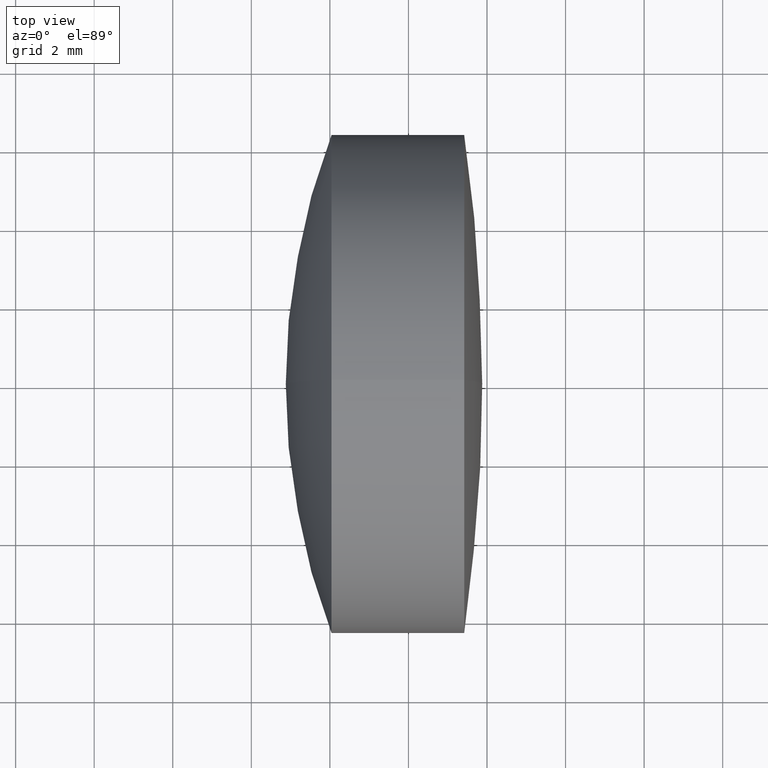
[diagram: clean part render]
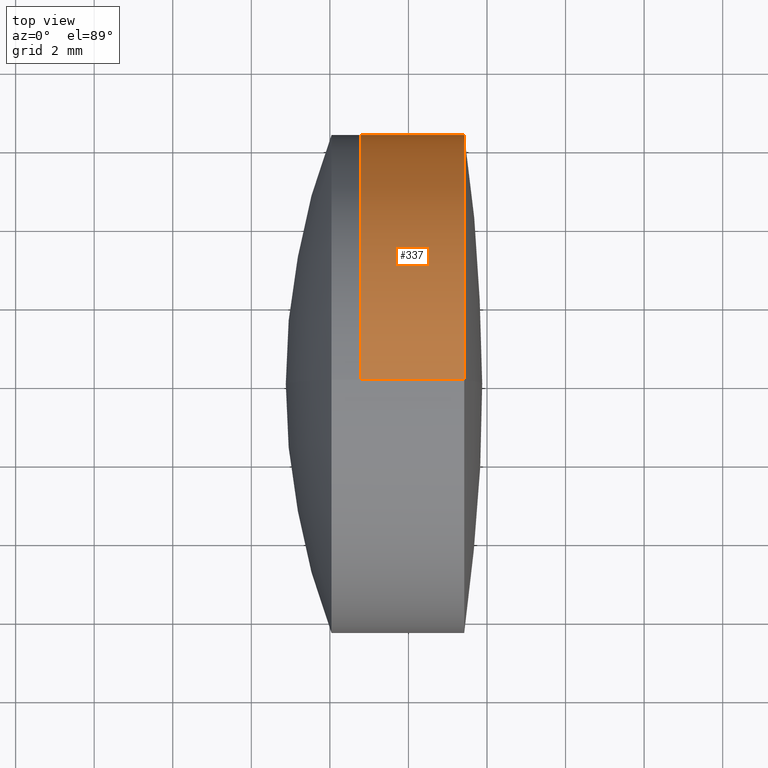
[diagram: same view with one face highlighted and labeled with its STEP entity id]
A machine part, top view. The second image highlights one B-rep face of the part: STEP entity #337.
In plain terms, the highlighted cylindrical surface (partial cylindrical patch) has radius 6.35 mm, axis along (-1, -0, -0).
Its self-contained STEP definition (entity closure, byte-faithful):
#12 = CARTESIAN_POINT ( 'NONE',  ( 5.419314038603073600, 7.776507174585693100E-016, -6.349999999999999600 ) ) ;
#21 = CYLINDRICAL_SURFACE ( 'NONE', #250, 6.350000000000000500 ) ;
#25 = DIRECTION ( 'NONE',  ( -1.000000000000000000, -0.0000000000000000000, -0.0000000000000000000 ) ) ;
#29 = ORIENTED_EDGE ( 'NONE', *, *, #196, .T. ) ;
#38 = CARTESIAN_POINT ( 'NONE',  ( 2.791162019973177300, 7.776507174585694100E-016, -6.350000000000001400 ) ) ;
#42 = DIRECTION ( 'NONE',  ( -1.000000000000000000, -0.0000000000000000000, -0.0000000000000000000 ) ) ;
#43 = VERTEX_POINT ( 'NONE', #12 ) ;
#50 = DIRECTION ( 'NONE',  ( -1.000000000000000000, -0.0000000000000000000, -0.0000000000000000000 ) ) ;
#58 = ORIENTED_EDGE ( 'NONE', *, *, #63, .F. ) ;
#63 = EDGE_CURVE ( 'NONE', #135, #332, #146, .T. ) ;
#64 = EDGE_LOOP ( 'NONE', ( #140, #29, #58, #118 ) ) ;
#106 = VERTEX_POINT ( 'NONE', #273 ) ;
#111 = VECTOR ( 'NONE', #50, 1000.000000000000000 ) ;
#114 = CARTESIAN_POINT ( 'NONE',  ( -0.5519199926577972300, 7.776507174585693100E-016, -6.350000000000000500 ) ) ;
#118 = ORIENTED_EDGE ( 'NONE', *, *, #210, .F. ) ;
#123 = AXIS2_PLACEMENT_3D ( 'NONE', #184, #233, #181 ) ;
#127 = CARTESIAN_POINT ( 'NONE',  ( -0.5519199926577972300, 0.0000000000000000000, 6.350000000000000500 ) ) ;
#130 = DIRECTION ( 'NONE',  ( -1.000000000000000000, -0.0000000000000000000, -0.0000000000000000000 ) ) ;
#135 = VERTEX_POINT ( 'NONE', #222 ) ;
#140 = ORIENTED_EDGE ( 'NONE', *, *, #234, .T. ) ;
#146 = CIRCLE ( 'NONE', #123, 6.350000000000001400 ) ;
#148 = DIRECTION ( 'NONE',  ( 0.0000000000000000000, 0.0000000000000000000, 1.000000000000000000 ) ) ;
#158 = CARTESIAN_POINT ( 'NONE',  ( -0.5519199926577972300, 0.0000000000000000000, 0.0000000000000000000 ) ) ;
#161 = AXIS2_PLACEMENT_3D ( 'NONE', #229, #42, #148 ) ;
#181 = DIRECTION ( 'NONE',  ( 0.0000000000000000000, 0.0000000000000000000, 1.000000000000000000 ) ) ;
#184 = CARTESIAN_POINT ( 'NONE',  ( 2.791162019973177300, 0.0000000000000000000, 0.0000000000000000000 ) ) ;
#187 = LINE ( 'NONE', #127, #199 ) ;
#196 = EDGE_CURVE ( 'NONE', #43, #332, #286, .T. ) ;
#199 = VECTOR ( 'NONE', #130, 1000.000000000000000 ) ;
#210 = EDGE_CURVE ( 'NONE', #106, #135, #187, .T. ) ;
#222 = CARTESIAN_POINT ( 'NONE',  ( 2.791162019973177300, 0.0000000000000000000, 6.350000000000001400 ) ) ;
#229 = CARTESIAN_POINT ( 'NONE',  ( 5.419314038603073600, 0.0000000000000000000, 0.0000000000000000000 ) ) ;
#232 = FACE_OUTER_BOUND ( 'NONE', #64, .T. ) ;
#233 = DIRECTION ( 'NONE',  ( -1.000000000000000000, -0.0000000000000000000, -0.0000000000000000000 ) ) ;
#234 = EDGE_CURVE ( 'NONE', #106, #43, #317, .T. ) ;
#245 = DIRECTION ( 'NONE',  ( 0.0000000000000000000, 0.0000000000000000000, 1.000000000000000000 ) ) ;
#250 = AXIS2_PLACEMENT_3D ( 'NONE', #158, #25, #245 ) ;
#273 = CARTESIAN_POINT ( 'NONE',  ( 5.419314038603073600, 0.0000000000000000000, 6.349999999999999600 ) ) ;
#286 = LINE ( 'NONE', #114, #111 ) ;
#317 = CIRCLE ( 'NONE', #161, 6.349999999999999600 ) ;
#332 = VERTEX_POINT ( 'NONE', #38 ) ;
#337 = ADVANCED_FACE ( 'NONE', ( #232 ), #21, .T. ) ;